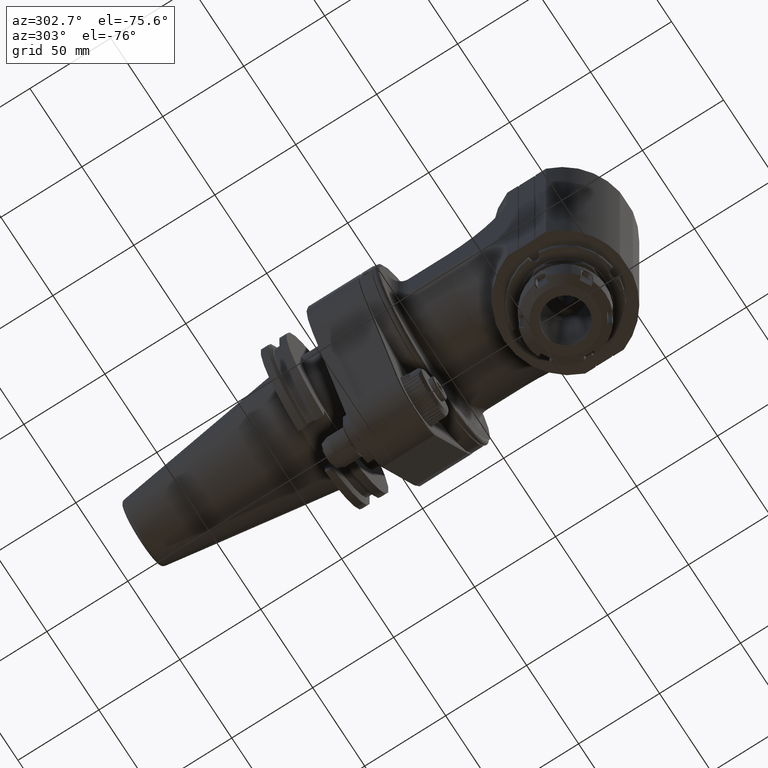
[diagram: clean part render]
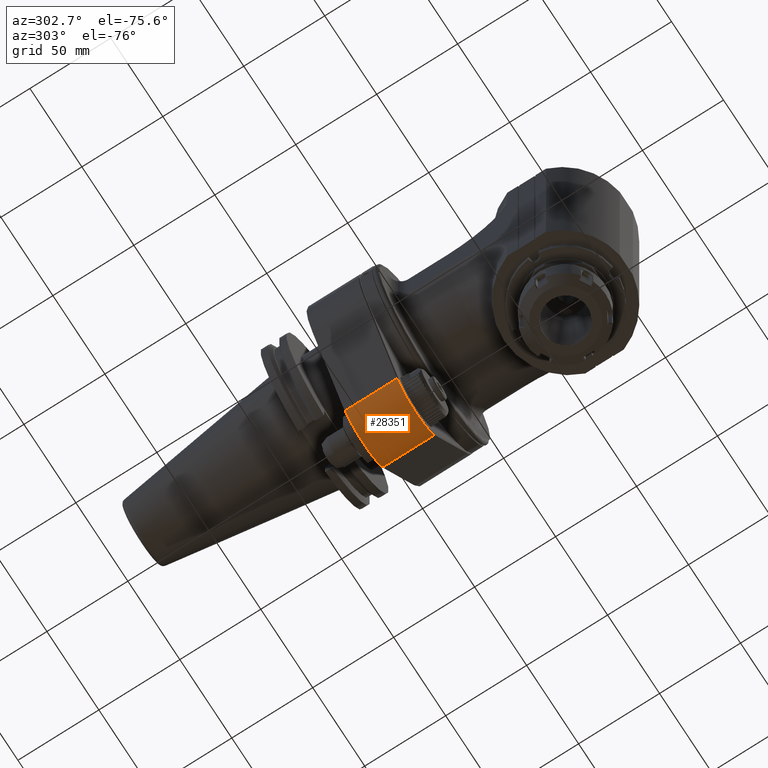
[diagram: same view with one face highlighted and labeled with its STEP entity id]
A machine part, auxiliary view. The second image highlights one B-rep face of the part: STEP entity #28351.
In plain terms, the highlighted cylindrical surface (partial cylindrical patch) has radius 20 mm, axis along (0, 1, 0).
Its self-contained STEP definition (entity closure, byte-faithful):
#2439=CIRCLE('',#30036,20.);
#2588=CIRCLE('',#30346,20.);
#3346=CYLINDRICAL_SURFACE('',#30347,20.);
#3773=FACE_OUTER_BOUND('',#5355,.T.);
#5355=EDGE_LOOP('',(#20110,#20111,#20112,#20113));
#7049=LINE('',#40981,#9591);
#7236=LINE('',#42487,#9778);
#9591=VECTOR('',#33069,31.9997523659797);
#9778=VECTOR('',#33806,31.9997524776297);
#12253=VERTEX_POINT('',#40847);
#12254=VERTEX_POINT('',#40851);
#12293=VERTEX_POINT('',#40979);
#12519=VERTEX_POINT('',#42483);
#15018=EDGE_CURVE('',#12254,#12253,#2439,.T.);
#15074=EDGE_CURVE('',#12293,#12253,#7049,.T.);
#15443=EDGE_CURVE('',#12293,#12519,#2588,.T.);
#15444=EDGE_CURVE('',#12254,#12519,#7236,.T.);
#20110=ORIENTED_EDGE('',*,*,#15443,.T.);
#20111=ORIENTED_EDGE('',*,*,#15444,.F.);
#20112=ORIENTED_EDGE('',*,*,#15018,.T.);
#20113=ORIENTED_EDGE('',*,*,#15074,.F.);
#28351=ADVANCED_FACE('',(#3773),#3346,.T.);
#30036=AXIS2_PLACEMENT_3D('',#40852,#32969,#32970);
#30346=AXIS2_PLACEMENT_3D('',#42485,#33802,#33803);
#30347=AXIS2_PLACEMENT_3D('',#42486,#33804,#33805);
#32969=DIRECTION('center_axis',(0.,1.,0.));
#32970=DIRECTION('ref_axis',(1.,0.,0.));
#33069=DIRECTION('',(3.81080393947804E-7,-0.99999999999991,1.85405221315602E-7));
#33802=DIRECTION('center_axis',(0.,-1.,0.));
#33803=DIRECTION('ref_axis',(1.,0.,0.));
#33804=DIRECTION('center_axis',(0.,1.,0.));
#33805=DIRECTION('ref_axis',(1.,0.,0.));
#33806=DIRECTION('',(-3.82438699266904E-7,0.99999999999991,1.86079929291902E-7));
#40847=CARTESIAN_POINT('',(-17.9843328943923,0.500151595690337,-88.7499827273196));
#40851=CARTESIAN_POINT('',(17.9843682449328,0.500170512042425,-88.7499999331764));
#40852=CARTESIAN_POINT('Origin',(0.,0.500341024091354,-80.));
#40979=CARTESIAN_POINT('',(-17.9843682475779,32.4998292651373,-88.7499999277408));
#40981=CARTESIAN_POINT('',(-17.98435747667,32.49985520783,-88.74999468733));
#42483=CARTESIAN_POINT('',(17.9843685923995,32.4998283294068,-88.7500001053328));
#42485=CARTESIAN_POINT('Origin',(0.,32.499658530269,-80.));
#42486=CARTESIAN_POINT('Origin',(0.,0.,-80.));
#42487=CARTESIAN_POINT('',(17.98435748801,0.5001435280147,-88.74999469957));